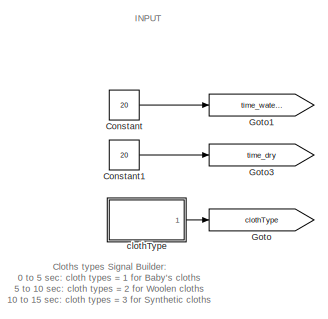
[diagram: root canvas - part 1/2, middle left region]
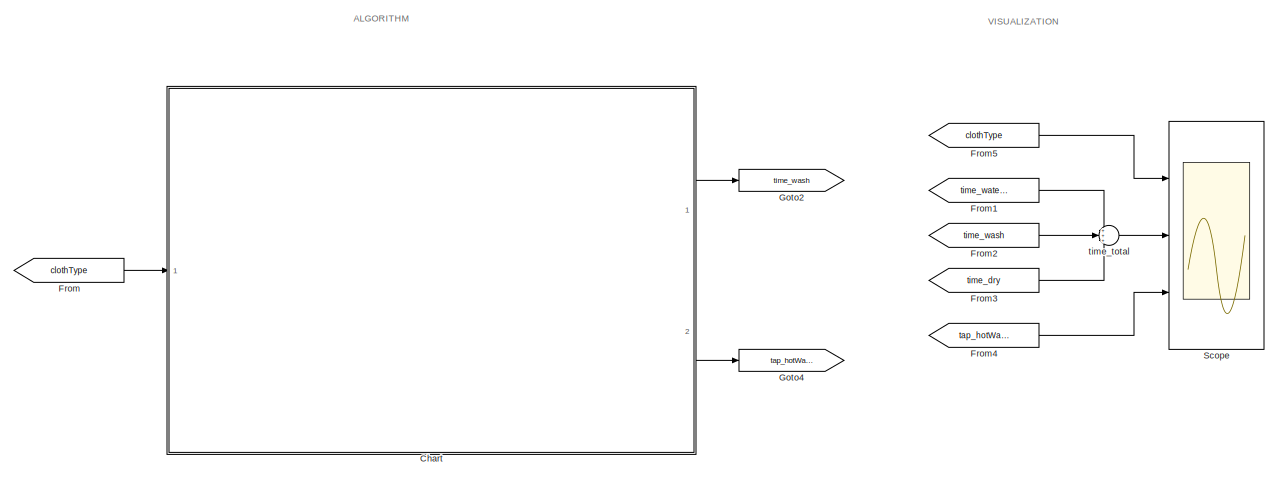
[diagram: root canvas - part 2/2, most of the canvas]
MODEL slx_0e0813e9b961
KIND model
CONFIG AbsTol = auto
CONFIG EnableMultiTasking = off
CONFIG FixedStep = auto
CONFIG MaxStep = auto
CONFIG MinStep = auto
CONFIG RelTol = 1e-3
CONFIG SampleTimeConstraint = Unconstrained
CONFIG Solver = VariableStepAuto
CONFIG SolverName = VariableStepAuto
CONFIG StartTime = 0.0
CONFIG StopTime = 15
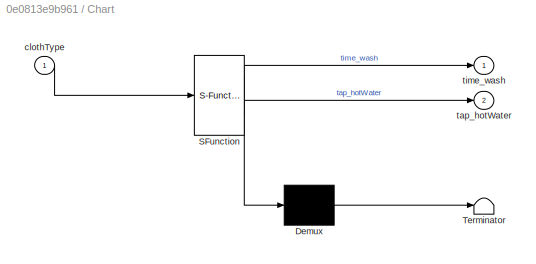
BLOCK [SubSystem] Chart
  ErrorFcn = Stateflow.Translate.translate
  PermitHierarchicalResolution = ExplicitOnly
  Ports = [1, 2]
  RequestExecContextInheritance = off
  SFBlockType = Chart
  TreatAsAtomicUnit = on
BLOCK [Demux] Chart/ Demux 
  Outputs = 1
  Ports = [1, 1]
BLOCK [S-Function] Chart/ SFunction 
  EnableBusSupport = on
  FunctionName = sf_sfun
  PortCounts = [1 3]
  Ports = [1, 3]
  SFcnIsStateOwnerBlock = off
  SFunctionDeploymentMode = off
  Tag = Stateflow S-Function 3
BLOCK [Terminator] Chart/ Terminator 
BLOCK [Inport] Chart/clothType
BLOCK [Outport] Chart/tap_hotWater
  Port = 2
BLOCK [Outport] Chart/time_wash
BLOCK [Constant] Constant
  Value = 20
BLOCK [Constant] Constant1
  Value = 20
BLOCK [From] From
  GotoTag = clothType
BLOCK [From] From1
  GotoTag = time_waterIntake
BLOCK [From] From2
  GotoTag = time_wash
BLOCK [From] From3
  GotoTag = time_dry
BLOCK [From] From4
  GotoTag = tap_hotWater
BLOCK [From] From5
  GotoTag = clothType
BLOCK [Goto] Goto
  GotoTag = clothType
BLOCK [Goto] Goto1
  GotoTag = time_waterIntake
BLOCK [Goto] Goto2
  GotoTag = time_wash
BLOCK [Goto] Goto3
  GotoTag = time_dry
BLOCK [Goto] Goto4
  GotoTag = tap_hotWater
BLOCK [Scope] Scope
  Floating = off
  NumInputPorts = 3
  Ports = [3]
  ScopeSpecificationString = Simulink.scopes.TimeScopeBlockCfg('CurrentConfiguration', extmgr.ConfigurationSet(extmgr.Configuration('Core','General UI',true),extmgr.Configuration('Core','Source UI',true),extmgr.Configuration('Sources','WiredSimulink',true),extmgr.Configuration('Visuals','Time Domain',true,'SerializedDisplays',{struct('MinYLimReal','-6.875','MaxYLimReal','61.875','YLabelReal','','MinYLimMag','0.00000','MaxYLim...<+1376ch>
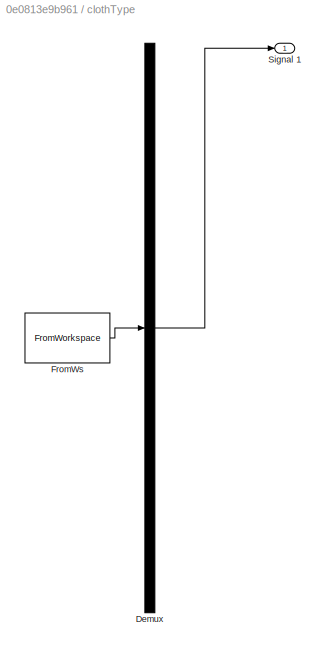
BLOCK [SubSystem] clothType
  ClipboardFcn = sigbuilder_block('clipboard');
  CloseFcn = sigbuilder_block('close');
  ContinueFcn = sigbuilder_block('continue');
  CopyFcn = sigbuilder_block('copy');
  DeleteFcn = sigbuilder_block('delete');
  LoadFcn = sigbuilder_block('load',[437.6 199.2 550.4 400 ]);
  MaskHideContents = on
  ModelCloseFcn = sigbuilder_block('modelClose');
  NameChangeFcn = sigbuilder_block('namechange');
  OpenFcn = sigbuilder_block('open',[437.6 199.2 550.4 400 ]);
  PauseFcn = sigbuilder_block('pause');
  Ports = [0, 1]
  PreSaveFcn = sigbuilder_block('preSave');
  RequestExecContextInheritance = off
  StartFcn = sigbuilder_block('start');
  StopFcn = sigbuilder_block('stop');
  Tag = STV Subsys
BLOCK [Demux] clothType/Demux
  DisplayOption = none
  Outputs = 1
  Ports = [1, 1]
  Tag = STV Demux
BLOCK [FromWorkspace] clothType/FromWs
  Tag = STV FromWs
  VariableName = tuvar
BLOCK [Outport] clothType/Signal 1
  Tag = STV Outport
BLOCK [Sum] time_total
  Inputs = +++
  Ports = [3, 1]
ANNOTATION (root): Cloths types Signal Builder: 0 to 5 sec: cloth types = 1 for Baby's cloths 5 to 10 sec: cloth types = 2 for Woolen cloths 10 to 15 sec: cloth types = 3 for Synthetic cloths
ANNOTATION (root): ALGORITHM
ANNOTATION (root): INPUT
ANNOTATION (root): VISUALIZATION
LINE Chart:1 -> Goto2:1
LINE Chart:2 -> Goto4:1
LINE Constant1:1 -> Goto3:1
LINE Constant:1 -> Goto1:1
LINE From1:1 -> time_total:1
LINE From2:1 -> time_total:2
LINE From3:1 -> time_total:3
LINE From4:1 -> Scope:3
LINE From5:1 -> Scope:1
LINE From:1 -> Chart:1
LINE clothType:1 -> Goto:1
LINE time_total:1 -> Scope:2
CHART Chart states=3 transitions=11
  STATE_LABEL 'BABY_CLOTHTYPE_1\nentry:\ntime_wash = 10;\ntap_hotWater = 1;'
  STATE_LABEL 'WOOLEN_CLOTHTYPE_2\nentry:\ntime_wash = 15;\ntap_hotWater = 0;'
  STATE_LABEL 'SYNTHETIC_CLOTHTYPE_3\nentry:\ntime_wash = 20;\ntap_hotWater = 0;'
CHART  states=0 transitions=0
